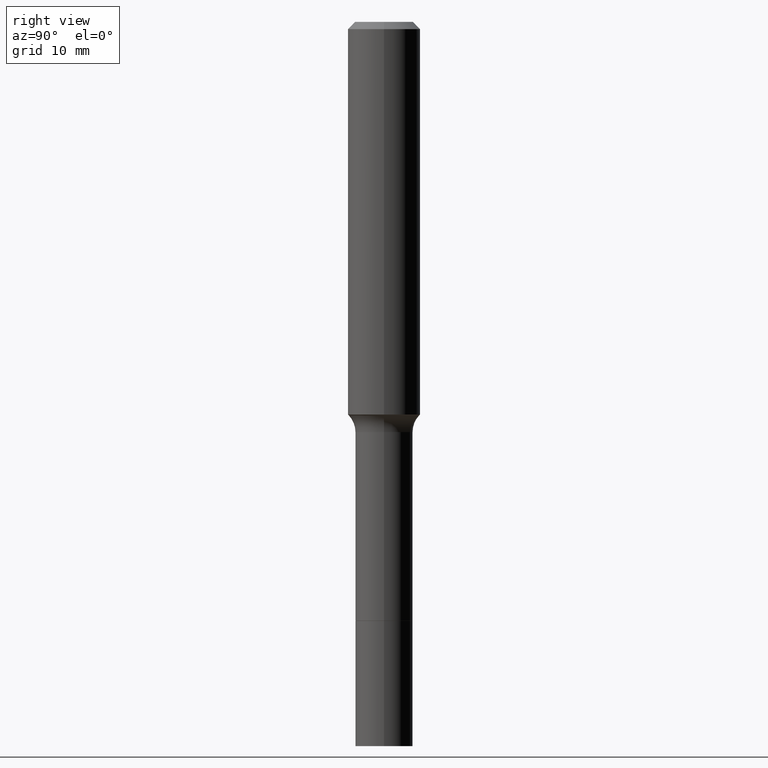
[diagram: clean part render]
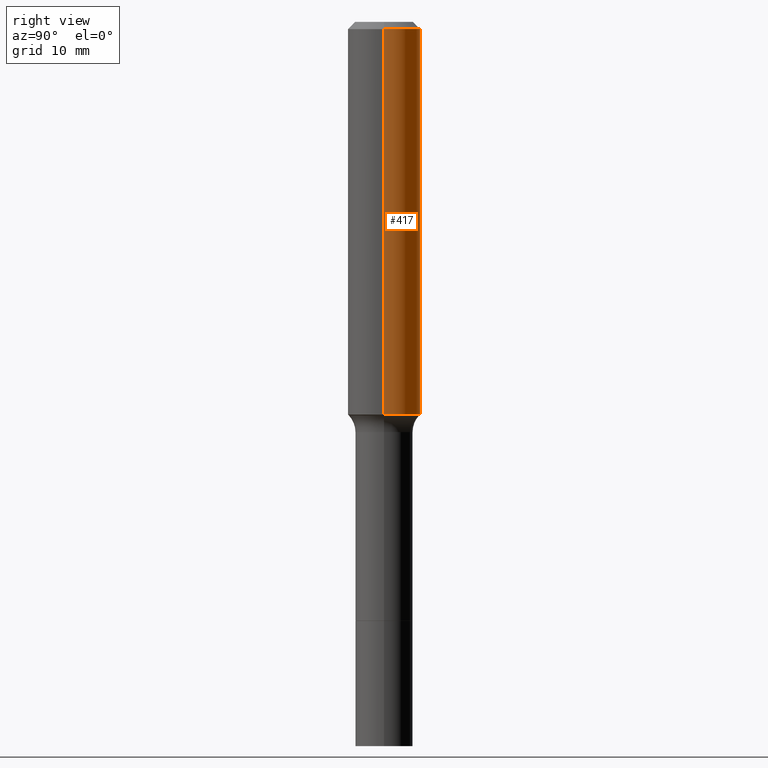
[diagram: same view with one face highlighted and labeled with its STEP entity id]
A machine part, right view. The second image highlights one B-rep face of the part: STEP entity #417.
In plain terms, the highlighted cylindrical surface (edge-blend (fillet) strip) has radius 2.9997 mm, axis along (-0, 0, 1).
Its self-contained STEP definition (entity closure, byte-faithful):
#20 = DIRECTION ( 'NONE',  ( 1.000000000000000000, -6.982962677686264344E-15, 0.000000000000000000 ) ) ;
#25 = VECTOR ( 'NONE', #266, 39.37007874015748143 ) ;
#29 = EDGE_CURVE ( 'NONE', #341, #238, #459, .T. ) ;
#55 = CARTESIAN_POINT ( 'NONE',  ( 0.1180999999999999966, -9.071566814582237199E-16, -0.02362000000000014435 ) ) ;
#58 = DIRECTION ( 'NONE',  ( -2.445468806185136597E-29, 3.491481338843145583E-15, 1.000000000000000000 ) ) ;
#63 = CYLINDRICAL_SURFACE ( 'NONE', #457, 0.1181000000000000660 ) ;
#71 = ORIENTED_EDGE ( 'NONE', *, *, #192, .F. ) ;
#72 = DIRECTION ( 'NONE',  ( -2.445468806185136597E-29, 3.491481338843145583E-15, 1.000000000000000000 ) ) ;
#93 = EDGE_CURVE ( 'NONE', #430, #155, #511, .T. ) ;
#98 = CARTESIAN_POINT ( 'NONE',  ( 0.1181000000000000660, -8.246878922347485584E-16, 5.758764772215003944E-30 ) ) ;
#109 = CARTESIAN_POINT ( 'NONE',  ( -0.1181000000000000660, 8.391509709326787887E-16, -5.809262341591047287E-30 ) ) ;
#125 = CARTESIAN_POINT ( 'NONE',  ( -0.1180999999999999966, -1.437635253250308379E-15, -0.02362000000000014435 ) ) ;
#133 = EDGE_LOOP ( 'NONE', ( #468, #181, #71, #339 ) ) ;
#136 = CIRCLE ( 'NONE', #434, 0.1180999999999999966 ) ;
#140 = CARTESIAN_POINT ( 'NONE',  ( -0.1181000000000001493, -3.631952688209820286E-15, -1.280574983861703320 ) ) ;
#155 = VERTEX_POINT ( 'NONE', #125 ) ;
#161 = CARTESIAN_POINT ( 'NONE',  ( 5.776197320209328408E-31, -8.246878922347560526E-17, -0.02362000000000014435 ) ) ;
#178 = DIRECTION ( 'NONE',  ( -2.445468806185136877E-29, 3.491481338843145188E-15, 1.000000000000000000 ) ) ;
#179 = EDGE_CURVE ( 'NONE', #341, #430, #373, .T. ) ;
#181 = ORIENTED_EDGE ( 'NONE', *, *, #93, .T. ) ;
#192 = EDGE_CURVE ( 'NONE', #238, #155, #136, .T. ) ;
#216 = DIRECTION ( 'NONE',  ( 1.000000000000000000, -6.982962677686266711E-15, 4.876176775795936353E-29 ) ) ;
#236 = FACE_OUTER_BOUND ( 'NONE', #133, .T. ) ;
#238 = VERTEX_POINT ( 'NONE', #55 ) ;
#266 = DIRECTION ( 'NONE',  ( -2.445468806185136877E-29, 3.491481338843145188E-15, 1.000000000000000000 ) ) ;
#334 = DIRECTION ( 'NONE',  ( 1.000000000000000000, -6.982962677686266711E-15, 0.000000000000000000 ) ) ;
#336 = VECTOR ( 'NONE', #178, 39.37007874015748143 ) ;
#339 = ORIENTED_EDGE ( 'NONE', *, *, #29, .F. ) ;
#341 = VERTEX_POINT ( 'NONE', #514 ) ;
#368 = AXIS2_PLACEMENT_3D ( 'NONE', #405, #58, #20 ) ;
#373 = CIRCLE ( 'NONE', #368, 0.1181000000000001493 ) ;
#405 = CARTESIAN_POINT ( 'NONE',  ( 3.131606177014830637E-29, -4.471103659142499272E-15, -1.280574983861703320 ) ) ;
#417 = ADVANCED_FACE ( 'NONE', ( #236 ), #63, .T. ) ;
#430 = VERTEX_POINT ( 'NONE', #140 ) ;
#434 = AXIS2_PLACEMENT_3D ( 'NONE', #161, #446, #334 ) ;
#446 = DIRECTION ( 'NONE',  ( -2.445468806185136597E-29, 3.491481338843145583E-15, 1.000000000000000000 ) ) ;
#457 = AXIS2_PLACEMENT_3D ( 'NONE', #500, #72, #216 ) ;
#459 = LINE ( 'NONE', #98, #336 ) ;
#468 = ORIENTED_EDGE ( 'NONE', *, *, #179, .T. ) ;
#500 = CARTESIAN_POINT ( 'NONE',  ( 0.000000000000000000, 0.000000000000000000, 0.000000000000000000 ) ) ;
#511 = LINE ( 'NONE', #109, #25 ) ;
#514 = CARTESIAN_POINT ( 'NONE',  ( 0.1181000000000001493, -5.295791551377248324E-15, -1.280574983861703320 ) ) ;